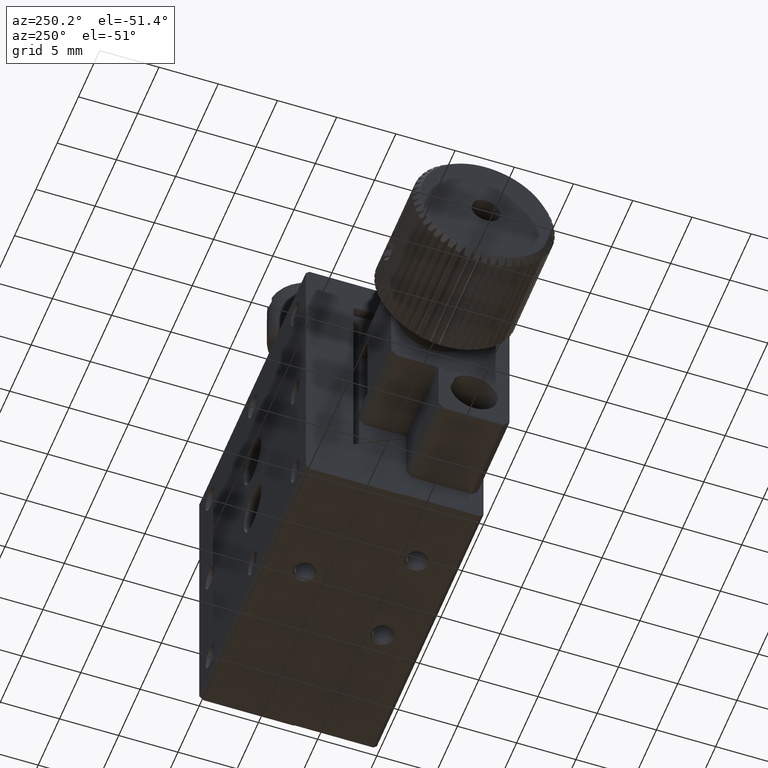
[diagram: clean part render]
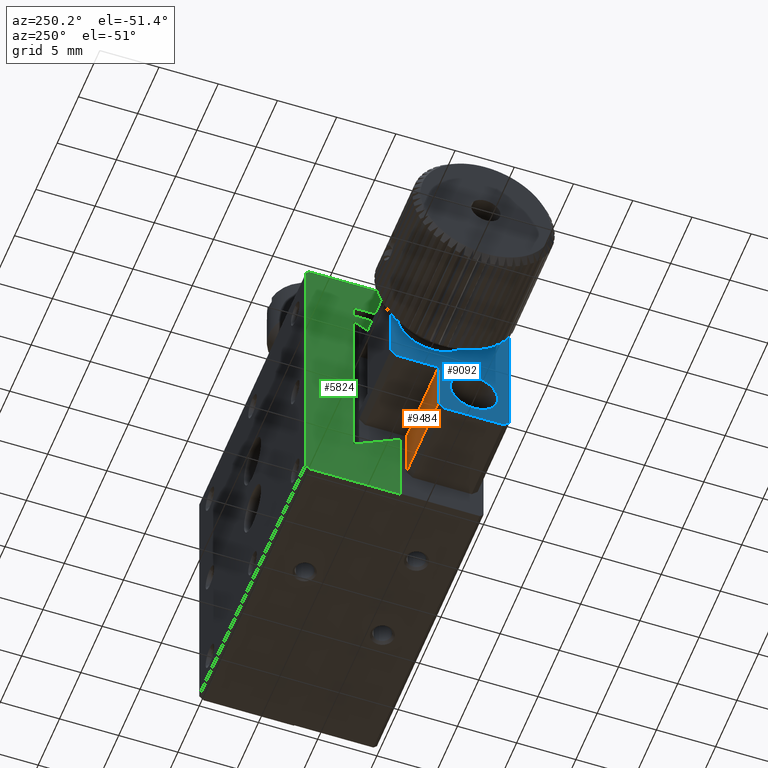
[diagram: same view with three faces highlighted in distinct colors, each labeled with its STEP entity id]
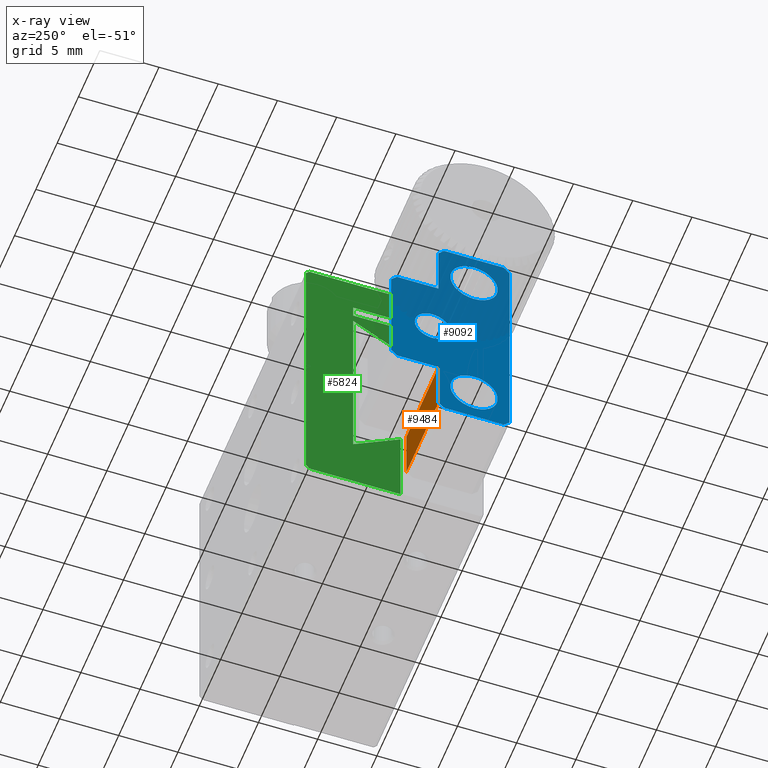
[diagram: x-ray of the same camera — body ghosted, the three highlighted faces saturated]
A machine part, auxiliary view with three faces highlighted in distinct colors.
The next image is the same camera in x-ray (body ghosted, the three faces saturated) — at least one of them is partly hidden behind the body in this view.
Their STEP definitions:

[orange] entity #9484 — the highlighted planar face has unit normal (0, 1, 0).
#164 = LINE ( 'NONE', #7251, #4172 ) ;
#303 = EDGE_CURVE ( 'NONE', #1077, #9637, #2518, .T. ) ;
#932 = CARTESIAN_POINT ( 'NONE',  ( -7.500000000000000000, 6.500000000000000888, -17.50000000000000000 ) ) ;
#1077 = VERTEX_POINT ( 'NONE', #1336 ) ;
#1268 = DIRECTION ( 'NONE',  ( -1.000000000000000000, -0.000000000000000000, 0.000000000000000000 ) ) ;
#1336 = CARTESIAN_POINT ( 'NONE',  ( -7.500000000000000000, 6.500000000000000888, -22.00000000000000000 ) ) ;
#1476 = VECTOR ( 'NONE', #12300, 1000.000000000000000 ) ;
#2136 = CARTESIAN_POINT ( 'NONE',  ( 2.602085213965210642E-15, 6.500000000000000888, -22.00000000000000000 ) ) ;
#2518 = LINE ( 'NONE', #12563, #1476 ) ;
#2934 = LINE ( 'NONE', #932, #11908 ) ;
#3054 = CARTESIAN_POINT ( 'NONE',  ( -7.500000000000000000, 6.500000000000000888, -22.00000000000000000 ) ) ;
#3502 = VERTEX_POINT ( 'NONE', #2136 ) ;
#3539 = CARTESIAN_POINT ( 'NONE',  ( 0.000000000000000000, 6.500000000000000888, -17.50000000000000000 ) ) ;
#3843 = EDGE_CURVE ( 'NONE', #7350, #9637, #2934, .T. ) ;
#4163 = ORIENTED_EDGE ( 'NONE', *, *, #6725, .T. ) ;
#4172 = VECTOR ( 'NONE', #11068, 1000.000000000000000 ) ;
#4196 = ORIENTED_EDGE ( 'NONE', *, *, #3843, .F. ) ;
#5017 = ORIENTED_EDGE ( 'NONE', *, *, #6267, .T. ) ;
#5327 = CARTESIAN_POINT ( 'NONE',  ( -7.500000000000000000, 6.500000000000000888, -22.00000000000000000 ) ) ;
#5668 = AXIS2_PLACEMENT_3D ( 'NONE', #3054, #6045, #8985 ) ;
#6045 = DIRECTION ( 'NONE',  ( 0.000000000000000000, 1.000000000000000000, 0.000000000000000000 ) ) ;
#6267 = EDGE_CURVE ( 'NONE', #7350, #3502, #164, .T. ) ;
#6725 = EDGE_CURVE ( 'NONE', #3502, #1077, #11447, .T. ) ;
#7110 = VECTOR ( 'NONE', #1268, 1000.000000000000000 ) ;
#7251 = CARTESIAN_POINT ( 'NONE',  ( 0.000000000000000000, 6.500000000000000888, 0.000000000000000000 ) ) ;
#7350 = VERTEX_POINT ( 'NONE', #3539 ) ;
#7357 = CARTESIAN_POINT ( 'NONE',  ( -7.500000000000000000, 6.500000000000000888, -17.50000000000000000 ) ) ;
#8669 = FACE_OUTER_BOUND ( 'NONE', #11251, .T. ) ;
#8985 = DIRECTION ( 'NONE',  ( 0.000000000000000000, -0.000000000000000000, 1.000000000000000000 ) ) ;
#9484 = ADVANCED_FACE ( 'NONE', ( #8669 ), #12112, .T. ) ;
#9637 = VERTEX_POINT ( 'NONE', #7357 ) ;
#11068 = DIRECTION ( 'NONE',  ( 0.000000000000000000, 0.000000000000000000, -1.000000000000000000 ) ) ;
#11246 = DIRECTION ( 'NONE',  ( -1.000000000000000000, 0.000000000000000000, -0.000000000000000000 ) ) ;
#11251 = EDGE_LOOP ( 'NONE', ( #12705, #4196, #5017, #4163 ) ) ;
#11447 = LINE ( 'NONE', #5327, #7110 ) ;
#11908 = VECTOR ( 'NONE', #11246, 1000.000000000000000 ) ;
#12112 = PLANE ( 'NONE',  #5668 ) ;
#12300 = DIRECTION ( 'NONE',  ( 0.000000000000000000, -0.000000000000000000, 1.000000000000000000 ) ) ;
#12563 = CARTESIAN_POINT ( 'NONE',  ( -7.500000000000000000, 6.500000000000000888, -22.00000000000000000 ) ) ;
#12705 = ORIENTED_EDGE ( 'NONE', *, *, #303, .T. ) ;

[blue] entity #9092 — the highlighted planar face has unit normal (1, 0, 0).
#6 = EDGE_CURVE ( 'NONE', #7862, #2863, #7757, .T. ) ;
#87 = FACE_BOUND ( 'NONE', #12091, .T. ) ;
#275 = ORIENTED_EDGE ( 'NONE', *, *, #303, .F. ) ;
#303 = EDGE_CURVE ( 'NONE', #1077, #9637, #2518, .T. ) ;
#402 = AXIS2_PLACEMENT_3D ( 'NONE', #2216, #6272, #1230 ) ;
#420 = CARTESIAN_POINT ( 'NONE',  ( -7.500000000000000000, 6.500000000000000888, -7.500000000000000000 ) ) ;
#431 = ORIENTED_EDGE ( 'NONE', *, *, #1306, .F. ) ;
#454 = VERTEX_POINT ( 'NONE', #9371 ) ;
#490 = CIRCLE ( 'NONE', #4300, 1.999999999999998224 ) ;
#560 = LINE ( 'NONE', #10670, #7242 ) ;
#637 = VECTOR ( 'NONE', #4921, 1000.000000000000000 ) ;
#777 = ORIENTED_EDGE ( 'NONE', *, *, #868, .F. ) ;
#783 = VECTOR ( 'NONE', #2922, 1000.000000000000114 ) ;
#844 = LINE ( 'NONE', #4900, #10739 ) ;
#868 = EDGE_CURVE ( 'NONE', #5462, #7862, #560, .T. ) ;
#974 = ORIENTED_EDGE ( 'NONE', *, *, #12050, .F. ) ;
#1034 = CIRCLE ( 'NONE', #402, 2.000000000000000000 ) ;
#1077 = VERTEX_POINT ( 'NONE', #1336 ) ;
#1230 = DIRECTION ( 'NONE',  ( 0.000000000000000000, 0.000000000000000000, 1.000000000000000000 ) ) ;
#1260 = CARTESIAN_POINT ( 'NONE',  ( -7.500000000000000000, 10.00000000000000000, -7.500000000000000000 ) ) ;
#1306 = EDGE_CURVE ( 'NONE', #2822, #3811, #5967, .T. ) ;
#1336 = CARTESIAN_POINT ( 'NONE',  ( -7.500000000000000000, 6.500000000000000888, -22.00000000000000000 ) ) ;
#1392 = LINE ( 'NONE', #6512, #4024 ) ;
#1476 = VECTOR ( 'NONE', #12300, 1000.000000000000000 ) ;
#1513 = CARTESIAN_POINT ( 'NONE',  ( -7.500000000000000000, 0.9999999999999997780, -22.50000000000000000 ) ) ;
#1578 = ORIENTED_EDGE ( 'NONE', *, *, #12008, .F. ) ;
#1668 = VECTOR ( 'NONE', #3904, 1000.000000000000114 ) ;
#1873 = VECTOR ( 'NONE', #9037, 1000.000000000000000 ) ;
#2003 = CARTESIAN_POINT ( 'NONE',  ( -7.500000000000000000, 0.5000000000000000000, -3.000000000000000000 ) ) ;
#2132 = DIRECTION ( 'NONE',  ( 1.000000000000000000, 0.000000000000000000, 0.000000000000000000 ) ) ;
#2184 = CARTESIAN_POINT ( 'NONE',  ( -7.500000000000000000, 1.000000000000000000, -2.500000000000000000 ) ) ;
#2216 = CARTESIAN_POINT ( 'NONE',  ( -7.500000000000000000, 3.500000000000000000, -5.554000000000001158 ) ) ;
#2241 = ORIENTED_EDGE ( 'NONE', *, *, #8329, .F. ) ;
#2353 = EDGE_CURVE ( 'NONE', #3811, #5462, #8545, .T. ) ;
#2518 = LINE ( 'NONE', #12563, #1476 ) ;
#2693 = VECTOR ( 'NONE', #11043, 1000.000000000000114 ) ;
#2710 = DIRECTION ( 'NONE',  ( 0.000000000000000000, -1.000000000000000000, -0.000000000000000000 ) ) ;
#2771 = DIRECTION ( 'NONE',  ( 0.000000000000000000, 0.7071067811865472397, -0.7071067811865479058 ) ) ;
#2822 = VERTEX_POINT ( 'NONE', #1260 ) ;
#2863 = VERTEX_POINT ( 'NONE', #2184 ) ;
#2921 = EDGE_CURVE ( 'NONE', #12700, #12700, #490, .T. ) ;
#2922 = DIRECTION ( 'NONE',  ( 0.000000000000000000, 0.7071067811865474617, 0.7071067811865474617 ) ) ;
#2962 = CARTESIAN_POINT ( 'NONE',  ( -7.500000000000000000, 10.50000000000000178, -8.000000000000000000 ) ) ;
#3009 = FACE_BOUND ( 'NONE', #3867, .T. ) ;
#3190 = CARTESIAN_POINT ( 'NONE',  ( -7.500000000000000000, 10.50000000000000000, -8.000000000000000000 ) ) ;
#3295 = DIRECTION ( 'NONE',  ( -1.000000000000000000, 2.891205793341133359E-16, 0.000000000000000000 ) ) ;
#3403 = EDGE_CURVE ( 'NONE', #5314, #9200, #11063, .T. ) ;
#3409 = CARTESIAN_POINT ( 'NONE',  ( -7.500000000000000000, 0.5000000000000000000, -3.000000000000000000 ) ) ;
#3811 = VERTEX_POINT ( 'NONE', #4001 ) ;
#3832 = CARTESIAN_POINT ( 'NONE',  ( -7.500000000000000000, 10.00000000000000178, -17.50000000000000000 ) ) ;
#3867 = EDGE_LOOP ( 'NONE', ( #6718 ) ) ;
#3904 = DIRECTION ( 'NONE',  ( 0.000000000000000000, -0.7071067811865474617, -0.7071067811865474617 ) ) ;
#4001 = CARTESIAN_POINT ( 'NONE',  ( -7.500000000000000000, 6.500000000000000888, -7.500000000000000000 ) ) ;
#4024 = VECTOR ( 'NONE', #7429, 1000.000000000000000 ) ;
#4097 = DIRECTION ( 'NONE',  ( 0.000000000000000000, 0.7071067811865474617, 0.7071067811865474617 ) ) ;
#4139 = CARTESIAN_POINT ( 'NONE',  ( -7.500000000000000000, 0.000000000000000000, 0.000000000000000000 ) ) ;
#4300 = AXIS2_PLACEMENT_3D ( 'NONE', #8716, #12761, #9515 ) ;
#4377 = VERTEX_POINT ( 'NONE', #2962 ) ;
#4508 = CARTESIAN_POINT ( 'NONE',  ( -7.500000000000000000, 0.5000000000000000000, -22.00000000000000000 ) ) ;
#4619 = AXIS2_PLACEMENT_3D ( 'NONE', #6354, #3295, #5362 ) ;
#4689 = EDGE_CURVE ( 'NONE', #5793, #6116, #9290, .T. ) ;
#4900 = CARTESIAN_POINT ( 'NONE',  ( -7.500000000000000000, 1.000000000000000000, -22.50000000000000000 ) ) ;
#4921 = DIRECTION ( 'NONE',  ( 0.000000000000000000, -1.000000000000000000, -0.000000000000000000 ) ) ;
#5073 = FACE_BOUND ( 'NONE', #6097, .T. ) ;
#5270 = VECTOR ( 'NONE', #2771, 999.9999999999998863 ) ;
#5314 = VERTEX_POINT ( 'NONE', #3409 ) ;
#5362 = DIRECTION ( 'NONE',  ( -5.782411586682264746E-16, -1.000000000000000000, 0.000000000000000000 ) ) ;
#5369 = VECTOR ( 'NONE', #6990, 1000.000000000000000 ) ;
#5462 = VERTEX_POINT ( 'NONE', #10040 ) ;
#5514 = LINE ( 'NONE', #4508, #5270 ) ;
#5793 = VERTEX_POINT ( 'NONE', #3832 ) ;
#5872 = DIRECTION ( 'NONE',  ( 0.000000000000000000, -0.7071067811865479058, 0.7071067811865472397 ) ) ;
#5967 = LINE ( 'NONE', #9970, #12938 ) ;
#6097 = EDGE_LOOP ( 'NONE', ( #2241 ) ) ;
#6110 = VERTEX_POINT ( 'NONE', #10111 ) ;
#6116 = VERTEX_POINT ( 'NONE', #12799 ) ;
#6190 = FACE_OUTER_BOUND ( 'NONE', #10238, .T. ) ;
#6272 = DIRECTION ( 'NONE',  ( -1.000000000000000000, 0.000000000000000000, 0.000000000000000000 ) ) ;
#6354 = CARTESIAN_POINT ( 'NONE',  ( -7.500000000050022209, 7.000000000000000000, -12.50000000000000000 ) ) ;
#6403 = VECTOR ( 'NONE', #8353, 1000.000000000000000 ) ;
#6423 = ORIENTED_EDGE ( 'NONE', *, *, #11970, .F. ) ;
#6512 = CARTESIAN_POINT ( 'NONE',  ( -7.500000000000000000, 10.50000000000000000, -20.02100000000000080 ) ) ;
#6699 = CARTESIAN_POINT ( 'NONE',  ( -7.500000000000000000, 3.500000000000000000, -21.44600000000000151 ) ) ;
#6718 = ORIENTED_EDGE ( 'NONE', *, *, #12272, .F. ) ;
#6990 = DIRECTION ( 'NONE',  ( 0.000000000000000000, -0.000000000000000000, -1.000000000000000000 ) ) ;
#7242 = VECTOR ( 'NONE', #5872, 999.9999999999998863 ) ;
#7357 = CARTESIAN_POINT ( 'NONE',  ( -7.500000000000000000, 6.500000000000000888, -17.50000000000000000 ) ) ;
#7369 = ORIENTED_EDGE ( 'NONE', *, *, #13087, .T. ) ;
#7429 = DIRECTION ( 'NONE',  ( 0.000000000000000000, -0.000000000000000000, -1.000000000000000000 ) ) ;
#7757 = LINE ( 'NONE', #9921, #637 ) ;
#7788 = VERTEX_POINT ( 'NONE', #10578 ) ;
#7820 = ORIENTED_EDGE ( 'NONE', *, *, #3403, .F. ) ;
#7862 = VERTEX_POINT ( 'NONE', #9840 ) ;
#7931 = LINE ( 'NONE', #10762, #1873 ) ;
#7942 = LINE ( 'NONE', #11973, #783 ) ;
#7969 = AXIS2_PLACEMENT_3D ( 'NONE', #4139, #2132, #12127 ) ;
#8329 = EDGE_CURVE ( 'NONE', #6110, #6110, #8409, .T. ) ;
#8353 = DIRECTION ( 'NONE',  ( 0.000000000000000000, -0.000000000000000000, 1.000000000000000000 ) ) ;
#8409 = CIRCLE ( 'NONE', #4619, 1.499999999975899057 ) ;
#8545 = LINE ( 'NONE', #420, #6403 ) ;
#8716 = CARTESIAN_POINT ( 'NONE',  ( -7.500000000000000000, 3.500000000000000000, -19.44600000000000151 ) ) ;
#8895 = DIRECTION ( 'NONE',  ( 0.000000000000000000, 1.000000000000000000, 0.000000000000000000 ) ) ;
#9037 = DIRECTION ( 'NONE',  ( 0.000000000000000000, 1.000000000000000000, 0.000000000000000000 ) ) ;
#9090 = CARTESIAN_POINT ( 'NONE',  ( -7.500000000000000000, 10.00000000000000000, -17.50000000000000000 ) ) ;
#9092 = ADVANCED_FACE ( 'NONE', ( #6190, #5073, #3009, #87 ), #11255, .F. ) ;
#9200 = VERTEX_POINT ( 'NONE', #10329 ) ;
#9290 = LINE ( 'NONE', #9090, #12561 ) ;
#9371 = CARTESIAN_POINT ( 'NONE',  ( -7.500000000000000000, 3.500000000000000000, -3.554000000000000714 ) ) ;
#9405 = ORIENTED_EDGE ( 'NONE', *, *, #2921, .F. ) ;
#9515 = DIRECTION ( 'NONE',  ( 0.000000000000000000, 0.000000000000000000, -1.000000000000000000 ) ) ;
#9563 = EDGE_CURVE ( 'NONE', #4377, #2822, #12049, .T. ) ;
#9637 = VERTEX_POINT ( 'NONE', #7357 ) ;
#9831 = CARTESIAN_POINT ( 'NONE',  ( -7.500000000000000000, 1.000000000000000000, -2.500000000000000000 ) ) ;
#9840 = CARTESIAN_POINT ( 'NONE',  ( -7.500000000000000000, 6.000000000000000000, -2.500000000000000444 ) ) ;
#9921 = CARTESIAN_POINT ( 'NONE',  ( -7.500000000000000000, 6.000000000000000000, -2.500000000000000000 ) ) ;
#9970 = CARTESIAN_POINT ( 'NONE',  ( -7.500000000000000000, 10.00000000000000000, -7.500000000000000000 ) ) ;
#10040 = CARTESIAN_POINT ( 'NONE',  ( -7.500000000000000000, 6.500000000000000888, -3.000000000000000000 ) ) ;
#10111 = CARTESIAN_POINT ( 'NONE',  ( -7.500000000050023097, 5.500000000024100721, -12.50000000000000000 ) ) ;
#10238 = EDGE_LOOP ( 'NONE', ( #777, #12817, #431, #12086, #7369, #11316, #974, #275, #11472, #12883, #6423, #7820, #1578, #10994 ) ) ;
#10329 = CARTESIAN_POINT ( 'NONE',  ( -7.500000000000000000, 0.5000000000000000000, -22.00000000000000000 ) ) ;
#10471 = EDGE_CURVE ( 'NONE', #7788, #1077, #7942, .T. ) ;
#10578 = CARTESIAN_POINT ( 'NONE',  ( -7.500000000000000000, 6.000000000000000888, -22.50000000000000000 ) ) ;
#10670 = CARTESIAN_POINT ( 'NONE',  ( -7.500000000000000000, 6.500000000000000888, -3.000000000000000000 ) ) ;
#10739 = VECTOR ( 'NONE', #8895, 1000.000000000000000 ) ;
#10762 = CARTESIAN_POINT ( 'NONE',  ( -7.500000000000000000, 6.500000000000000888, -17.50000000000000000 ) ) ;
#10994 = ORIENTED_EDGE ( 'NONE', *, *, #6, .F. ) ;
#11043 = DIRECTION ( 'NONE',  ( 0.000000000000000000, -0.7071067811865474617, 0.7071067811865474617 ) ) ;
#11063 = LINE ( 'NONE', #2003, #5369 ) ;
#11255 = PLANE ( 'NONE',  #7969 ) ;
#11316 = ORIENTED_EDGE ( 'NONE', *, *, #4689, .F. ) ;
#11472 = ORIENTED_EDGE ( 'NONE', *, *, #10471, .F. ) ;
#11919 = VERTEX_POINT ( 'NONE', #1513 ) ;
#11970 = EDGE_CURVE ( 'NONE', #9200, #11919, #5514, .T. ) ;
#11973 = CARTESIAN_POINT ( 'NONE',  ( -7.500000000000000000, 6.000000000000000000, -22.50000000000000000 ) ) ;
#12008 = EDGE_CURVE ( 'NONE', #2863, #5314, #12818, .T. ) ;
#12049 = LINE ( 'NONE', #3190, #2693 ) ;
#12050 = EDGE_CURVE ( 'NONE', #9637, #5793, #7931, .T. ) ;
#12086 = ORIENTED_EDGE ( 'NONE', *, *, #9563, .F. ) ;
#12091 = EDGE_LOOP ( 'NONE', ( #9405 ) ) ;
#12106 = EDGE_CURVE ( 'NONE', #11919, #7788, #844, .T. ) ;
#12127 = DIRECTION ( 'NONE',  ( 0.000000000000000000, 0.000000000000000000, -1.000000000000000000 ) ) ;
#12272 = EDGE_CURVE ( 'NONE', #454, #454, #1034, .T. ) ;
#12300 = DIRECTION ( 'NONE',  ( 0.000000000000000000, -0.000000000000000000, 1.000000000000000000 ) ) ;
#12561 = VECTOR ( 'NONE', #4097, 1000.000000000000114 ) ;
#12563 = CARTESIAN_POINT ( 'NONE',  ( -7.500000000000000000, 6.500000000000000888, -22.00000000000000000 ) ) ;
#12700 = VERTEX_POINT ( 'NONE', #6699 ) ;
#12761 = DIRECTION ( 'NONE',  ( -1.000000000000000000, -0.000000000000000000, -0.000000000000000000 ) ) ;
#12799 = CARTESIAN_POINT ( 'NONE',  ( -7.500000000000000000, 10.50000000000000000, -17.00000000000000000 ) ) ;
#12817 = ORIENTED_EDGE ( 'NONE', *, *, #2353, .F. ) ;
#12818 = LINE ( 'NONE', #9831, #1668 ) ;
#12883 = ORIENTED_EDGE ( 'NONE', *, *, #12106, .F. ) ;
#12938 = VECTOR ( 'NONE', #2710, 1000.000000000000000 ) ;
#13087 = EDGE_CURVE ( 'NONE', #4377, #6116, #1392, .T. ) ;

[green] entity #5824 — the highlighted planar face has unit normal (1, 0, 0).
#73 = EDGE_CURVE ( 'NONE', #4964, #8738, #3665, .T. ) ;
#177 = VECTOR ( 'NONE', #1647, 1000.000000000000000 ) ;
#208 = DIRECTION ( 'NONE',  ( 0.000000000000000000, -0.7071067811865134889, 0.7071067811865816566 ) ) ;
#259 = VERTEX_POINT ( 'NONE', #9118 ) ;
#439 = VECTOR ( 'NONE', #11475, 1000.000000000000000 ) ;
#680 = ORIENTED_EDGE ( 'NONE', *, *, #755, .F. ) ;
#703 = ORIENTED_EDGE ( 'NONE', *, *, #7062, .F. ) ;
#755 = EDGE_CURVE ( 'NONE', #10226, #3328, #6408, .T. ) ;
#757 = CARTESIAN_POINT ( 'NONE',  ( 0.000000000000000000, 6.999999999999999112, -3.000000000000000000 ) ) ;
#797 = CARTESIAN_POINT ( 'NONE',  ( 0.000000000000000000, 11.00000000000000000, -4.000000000000000000 ) ) ;
#846 = ORIENTED_EDGE ( 'NONE', *, *, #4931, .T. ) ;
#982 = CARTESIAN_POINT ( 'NONE',  ( 0.000000000000000000, 11.00000000000000000, -20.37500000000000000 ) ) ;
#1100 = VECTOR ( 'NONE', #11258, 1000.000000000000000 ) ;
#1523 = DIRECTION ( 'NONE',  ( -0.000000000000000000, 1.000000000000000000, 0.000000000000000000 ) ) ;
#1552 = LINE ( 'NONE', #1618, #11150 ) ;
#1618 = CARTESIAN_POINT ( 'NONE',  ( 0.000000000000000000, 6.999999999999999112, -7.000000000000000000 ) ) ;
#1627 = VECTOR ( 'NONE', #10003, 1000.000000000000000 ) ;
#1647 = DIRECTION ( 'NONE',  ( 0.000000000000000000, 0.000000000000000000, -1.000000000000000000 ) ) ;
#1680 = ORIENTED_EDGE ( 'NONE', *, *, #9575, .F. ) ;
#1854 = CARTESIAN_POINT ( 'NONE',  ( 0.000000000000000000, 6.999999999999999112, 0.000000000000000000 ) ) ;
#1926 = CARTESIAN_POINT ( 'NONE',  ( 0.000000000000000000, 11.00000000000000000, 0.000000000000000000 ) ) ;
#1957 = DIRECTION ( 'NONE',  ( 1.000000000000000000, 0.000000000000000000, 0.000000000000000000 ) ) ;
#2125 = EDGE_LOOP ( 'NONE', ( #1680, #2529, #10183, #3751, #2437, #4994, #2471, #10885, #11951, #703, #846, #7558, #680, #8143 ) ) ;
#2390 = VERTEX_POINT ( 'NONE', #3268 ) ;
#2437 = ORIENTED_EDGE ( 'NONE', *, *, #73, .F. ) ;
#2445 = EDGE_CURVE ( 'NONE', #10271, #12280, #5537, .T. ) ;
#2471 = ORIENTED_EDGE ( 'NONE', *, *, #13027, .F. ) ;
#2529 = ORIENTED_EDGE ( 'NONE', *, *, #2445, .T. ) ;
#2766 = CARTESIAN_POINT ( 'NONE',  ( 0.000000000000000000, 15.00000000000000000, 0.000000000000000000 ) ) ;
#3043 = CARTESIAN_POINT ( 'NONE',  ( -3.035766082959412415E-15, 11.00000000000000000, -20.37499999999999645 ) ) ;
#3268 = CARTESIAN_POINT ( 'NONE',  ( 0.000000000000000000, 11.00000000000000000, -3.000000000000000444 ) ) ;
#3281 = CARTESIAN_POINT ( 'NONE',  ( 0.000000000000000000, 6.999999999999999112, -25.06500000000000128 ) ) ;
#3328 = VERTEX_POINT ( 'NONE', #757 ) ;
#3607 = VECTOR ( 'NONE', #9994, 1000.000000000000000 ) ;
#3657 = CARTESIAN_POINT ( 'NONE',  ( 0.000000000000000000, 15.00000000000000000, -25.06500000000000128 ) ) ;
#3665 = LINE ( 'NONE', #1854, #10765 ) ;
#3751 = ORIENTED_EDGE ( 'NONE', *, *, #4119, .F. ) ;
#3837 = CARTESIAN_POINT ( 'NONE',  ( 0.000000000000000000, 14.70000000000004547, 1.084202172485504434E-16 ) ) ;
#4055 = DIRECTION ( 'NONE',  ( 0.000000000000000000, -1.000000000000000000, -0.000000000000000000 ) ) ;
#4119 = EDGE_CURVE ( 'NONE', #8738, #259, #10640, .T. ) ;
#4339 = DIRECTION ( 'NONE',  ( -0.000000000000000000, 1.000000000000000000, 0.000000000000000000 ) ) ;
#4457 = VERTEX_POINT ( 'NONE', #7070 ) ;
#4931 = EDGE_CURVE ( 'NONE', #10419, #2390, #6475, .T. ) ;
#4962 = VECTOR ( 'NONE', #1523, 1000.000000000000000 ) ;
#4964 = VERTEX_POINT ( 'NONE', #5878 ) ;
#4994 = ORIENTED_EDGE ( 'NONE', *, *, #8134, .F. ) ;
#5051 = LINE ( 'NONE', #11037, #5649 ) ;
#5422 = CARTESIAN_POINT ( 'NONE',  ( 0.000000000000000000, 6.999999999999999112, -4.000000000000000000 ) ) ;
#5537 = LINE ( 'NONE', #7245, #1100 ) ;
#5554 = CARTESIAN_POINT ( 'NONE',  ( 0.000000000000000000, 11.00000000000000000, -3.000000000000000000 ) ) ;
#5595 = VERTEX_POINT ( 'NONE', #3043 ) ;
#5596 = VERTEX_POINT ( 'NONE', #7088 ) ;
#5649 = VECTOR ( 'NONE', #4055, 1000.000000000000000 ) ;
#5719 = CARTESIAN_POINT ( 'NONE',  ( 0.000000000000000000, 15.00000000000000000, -0.2999999999999834466 ) ) ;
#5726 = DIRECTION ( 'NONE',  ( 0.000000000000000000, 0.000000000000000000, -1.000000000000000000 ) ) ;
#5824 = ADVANCED_FACE ( 'NONE', ( #7726 ), #8763, .F. ) ;
#5878 = CARTESIAN_POINT ( 'NONE',  ( -6.071532165918824830E-15, 6.999999999999999112, -18.06500000000000128 ) ) ;
#6023 = VERTEX_POINT ( 'NONE', #5422 ) ;
#6279 = LINE ( 'NONE', #10029, #10503 ) ;
#6389 = EDGE_CURVE ( 'NONE', #3328, #2390, #6531, .T. ) ;
#6408 = LINE ( 'NONE', #10411, #439 ) ;
#6475 = LINE ( 'NONE', #5554, #9815 ) ;
#6531 = LINE ( 'NONE', #8299, #9615 ) ;
#6662 = DIRECTION ( 'NONE',  ( 0.000000000000000000, 0.8659692529111527870, 0.5000972435561906737 ) ) ;
#6987 = LINE ( 'NONE', #10995, #1627 ) ;
#7062 = EDGE_CURVE ( 'NONE', #10419, #6023, #5051, .T. ) ;
#7070 = CARTESIAN_POINT ( 'NONE',  ( -3.035766082959412415E-15, 6.999999999999999112, -6.999999999999999112 ) ) ;
#7088 = CARTESIAN_POINT ( 'NONE',  ( -6.071532165918824830E-15, 11.00000000000000000, -4.689999999999999503 ) ) ;
#7245 = CARTESIAN_POINT ( 'NONE',  ( 0.000000000000000000, 14.99999999999999822, -24.69999999999999929 ) ) ;
#7548 = CARTESIAN_POINT ( 'NONE',  ( 0.000000000000000000, 15.00000000000000000, -0.2999999999999840017 ) ) ;
#7558 = ORIENTED_EDGE ( 'NONE', *, *, #6389, .F. ) ;
#7726 = FACE_OUTER_BOUND ( 'NONE', #2125, .T. ) ;
#8134 = EDGE_CURVE ( 'NONE', #5595, #4964, #10037, .T. ) ;
#8143 = ORIENTED_EDGE ( 'NONE', *, *, #9181, .F. ) ;
#8299 = CARTESIAN_POINT ( 'NONE',  ( 0.000000000000000000, 15.00000000000000000, -3.000000000000000000 ) ) ;
#8599 = VECTOR ( 'NONE', #13086, 1000.000000000000114 ) ;
#8653 = LINE ( 'NONE', #12690, #177 ) ;
#8738 = VERTEX_POINT ( 'NONE', #3281 ) ;
#8763 = PLANE ( 'NONE',  #10683 ) ;
#9118 = CARTESIAN_POINT ( 'NONE',  ( 0.000000000000000000, 14.63400000000001100, -25.06500000000000128 ) ) ;
#9181 = EDGE_CURVE ( 'NONE', #12073, #10226, #6987, .T. ) ;
#9292 = CARTESIAN_POINT ( 'NONE',  ( 0.000000000000000000, 14.99999999999999645, -24.69999999999999929 ) ) ;
#9552 = DIRECTION ( 'NONE',  ( 0.000000000000000000, -0.000000000000000000, 1.000000000000000000 ) ) ;
#9575 = EDGE_CURVE ( 'NONE', #10271, #12073, #12964, .T. ) ;
#9615 = VECTOR ( 'NONE', #4339, 1000.000000000000000 ) ;
#9815 = VECTOR ( 'NONE', #9552, 1000.000000000000000 ) ;
#9872 = VECTOR ( 'NONE', #208, 1000.000000000000000 ) ;
#9938 = CARTESIAN_POINT ( 'NONE',  ( 0.000000000000000000, 6.999999999999999112, 3.673940397442058882E-16 ) ) ;
#9994 = DIRECTION ( 'NONE',  ( 0.000000000000000000, 0.000000000000000000, -1.000000000000000000 ) ) ;
#10003 = DIRECTION ( 'NONE',  ( 0.000000000000000000, -1.000000000000000000, -0.000000000000000000 ) ) ;
#10029 = CARTESIAN_POINT ( 'NONE',  ( 0.000000000000000000, 14.63400000000001100, -25.06500000000000128 ) ) ;
#10037 = LINE ( 'NONE', #982, #8599 ) ;
#10117 = EDGE_CURVE ( 'NONE', #4457, #5596, #1552, .T. ) ;
#10183 = ORIENTED_EDGE ( 'NONE', *, *, #11027, .F. ) ;
#10226 = VERTEX_POINT ( 'NONE', #9938 ) ;
#10271 = VERTEX_POINT ( 'NONE', #5719 ) ;
#10411 = CARTESIAN_POINT ( 'NONE',  ( 0.000000000000000000, 6.999999999999999112, 0.000000000000000000 ) ) ;
#10419 = VERTEX_POINT ( 'NONE', #797 ) ;
#10503 = VECTOR ( 'NONE', #12219, 1000.000000000000000 ) ;
#10640 = LINE ( 'NONE', #3657, #4962 ) ;
#10683 = AXIS2_PLACEMENT_3D ( 'NONE', #2766, #1957, #12878 ) ;
#10765 = VECTOR ( 'NONE', #5726, 1000.000000000000000 ) ;
#10885 = ORIENTED_EDGE ( 'NONE', *, *, #10117, .F. ) ;
#10995 = CARTESIAN_POINT ( 'NONE',  ( 0.000000000000000000, 15.00000000000000000, 0.000000000000000000 ) ) ;
#11027 = EDGE_CURVE ( 'NONE', #259, #12280, #6279, .T. ) ;
#11037 = CARTESIAN_POINT ( 'NONE',  ( 0.000000000000000000, 15.00000000000000000, -4.000000000000000000 ) ) ;
#11150 = VECTOR ( 'NONE', #6662, 1000.000000000000114 ) ;
#11258 = DIRECTION ( 'NONE',  ( 0.000000000000000000, -6.067341726462099832E-17, -1.000000000000000000 ) ) ;
#11475 = DIRECTION ( 'NONE',  ( 0.000000000000000000, 0.000000000000000000, -1.000000000000000000 ) ) ;
#11939 = EDGE_CURVE ( 'NONE', #6023, #4457, #8653, .T. ) ;
#11951 = ORIENTED_EDGE ( 'NONE', *, *, #11939, .F. ) ;
#11989 = LINE ( 'NONE', #1926, #3607 ) ;
#12073 = VERTEX_POINT ( 'NONE', #3837 ) ;
#12219 = DIRECTION ( 'NONE',  ( 0.000000000000000000, 0.7080734329827849116, 0.7061388061167391816 ) ) ;
#12280 = VERTEX_POINT ( 'NONE', #9292 ) ;
#12690 = CARTESIAN_POINT ( 'NONE',  ( 0.000000000000000000, 6.999999999999999112, 0.000000000000000000 ) ) ;
#12878 = DIRECTION ( 'NONE',  ( 0.000000000000000000, 0.000000000000000000, -1.000000000000000000 ) ) ;
#12964 = LINE ( 'NONE', #7548, #9872 ) ;
#13027 = EDGE_CURVE ( 'NONE', #5596, #5595, #11989, .T. ) ;
#13086 = DIRECTION ( 'NONE',  ( 0.000000000000000000, -0.8659692529111527870, 0.5000972435561906737 ) ) ;